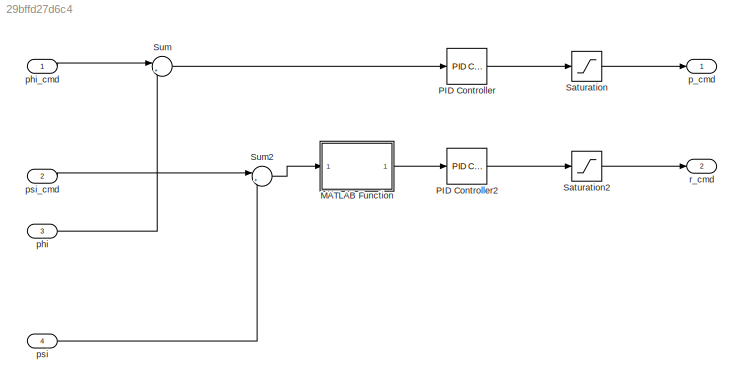
MODEL slx_29bffd27d6c4
KIND model
CONFIG AbsTol = auto
CONFIG EnableMultiTasking = off
CONFIG FixedStep = auto
CONFIG MaxStep = auto
CONFIG MinStep = auto
CONFIG RelTol = 1e-3
CONFIG SampleTimeConstraint = Unconstrained
CONFIG SolverName = VariableStepAuto
CONFIG StartTime = 0.0
CONFIG StopTime = 10.0
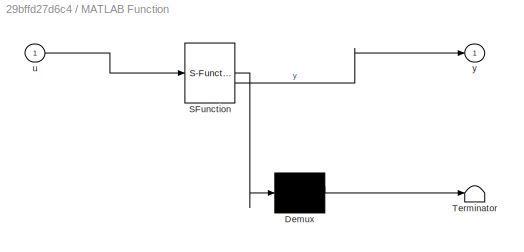
BLOCK [SubSystem] MATLAB Function
  ErrorFcn = Stateflow.Translate.translate
  PermitHierarchicalResolution = ExplicitOnly
  SFBlockType = MATLAB Function
  TreatAsAtomicUnit = on
BLOCK [Demux] MATLAB Function/ Demux 
  Outputs = 1
BLOCK [S-Function] MATLAB Function/ SFunction 
  EnableBusSupport = off
  FunctionName = sf_sfun
  PortCounts = [1 2]
  SFcnIsStateOwnerBlock = off
  SFunctionDeploymentMode = off
  Tag = Stateflow S-Function 2
BLOCK [Terminator] MATLAB Function/ Terminator 
BLOCK [Inport] MATLAB Function/u
BLOCK [Outport] MATLAB Function/y
BLOCK [Reference] PID Controller  REF=slpidlib/PID Controller
  LibrarySourceBlock = simulink/Continuous/PID Controller
  SourceBlock = slpidlib/PID Controller
  SourceType = PID 1dof
BLOCK [Reference] PID Controller2  REF=slpidlib/PID Controller
  LibrarySourceBlock = simulink/Continuous/PID Controller
  SourceBlock = slpidlib/PID Controller
  SourceType = PID 1dof
BLOCK [Saturate] Saturation
  LowerLimit = -2
  UpperLimit = 2
BLOCK [Saturate] Saturation2
  LowerLimit = -1
  UpperLimit = 1
BLOCK [Sum] Sum
  Inputs = |+-
BLOCK [Sum] Sum2
  Inputs = |+-
BLOCK [Outport] p_cmd
BLOCK [Inport] phi
  Port = 3
BLOCK [Inport] phi_cmd
BLOCK [Inport] psi
  Port = 4
BLOCK [Inport] psi_cmd
  Port = 2
BLOCK [Outport] r_cmd
  Port = 2
LINE MATLAB Function:1 -> PID Controller2:1
LINE PID Controller2:1 -> Saturation2:1
LINE PID Controller:1 -> Saturation:1
LINE Saturation2:1 -> r_cmd:1
LINE Saturation:1 -> p_cmd:1
LINE Sum2:1 -> MATLAB Function:1
LINE Sum:1 -> PID Controller:1
LINE phi:1 -> Sum:2
LINE phi_cmd:1 -> Sum:1
LINE psi:1 -> Sum2:2
LINE psi_cmd:1 -> Sum2:1
CHART MATLAB Function states=1 transitions=1
  STATE_LABEL 'eML_blk_kernel()'
  STATE_LABEL 'SCRIPT:\nfunction y = wrapAngle(u)\n  y = wrapToPi(u);\nend'
CHART  states=0 transitions=0
